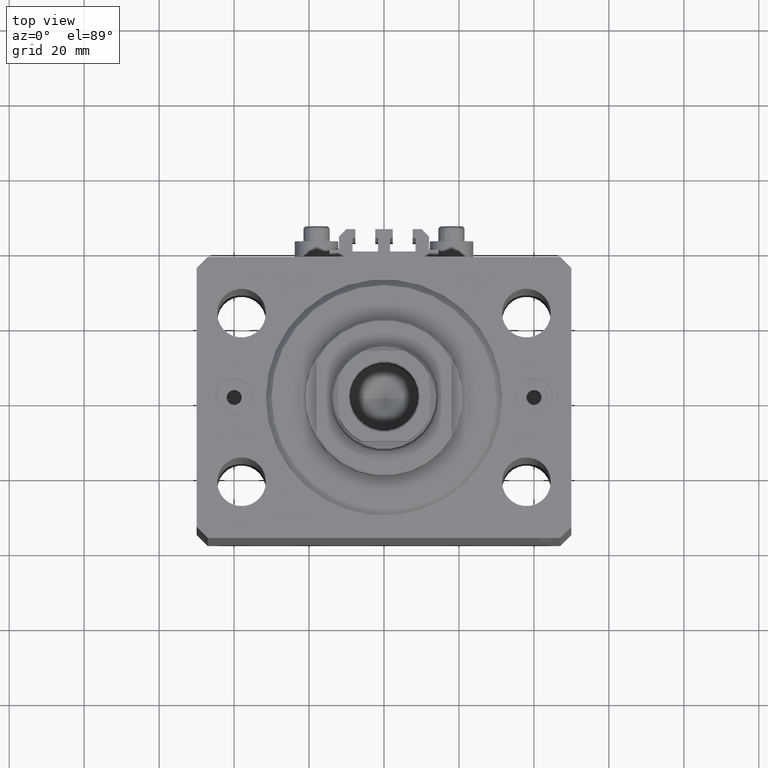
[diagram: clean part render]
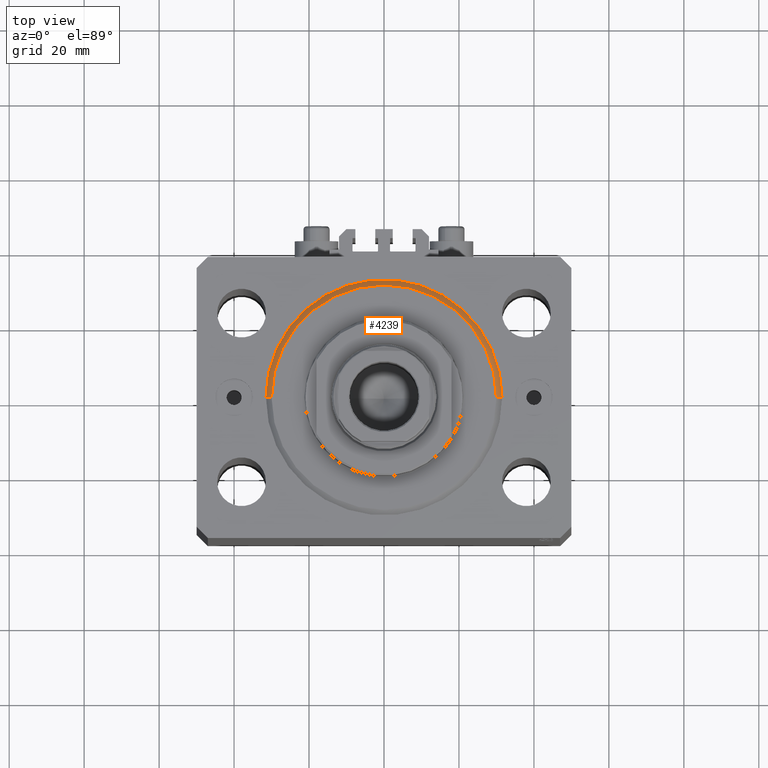
[diagram: same view with one face highlighted and labeled with its STEP entity id]
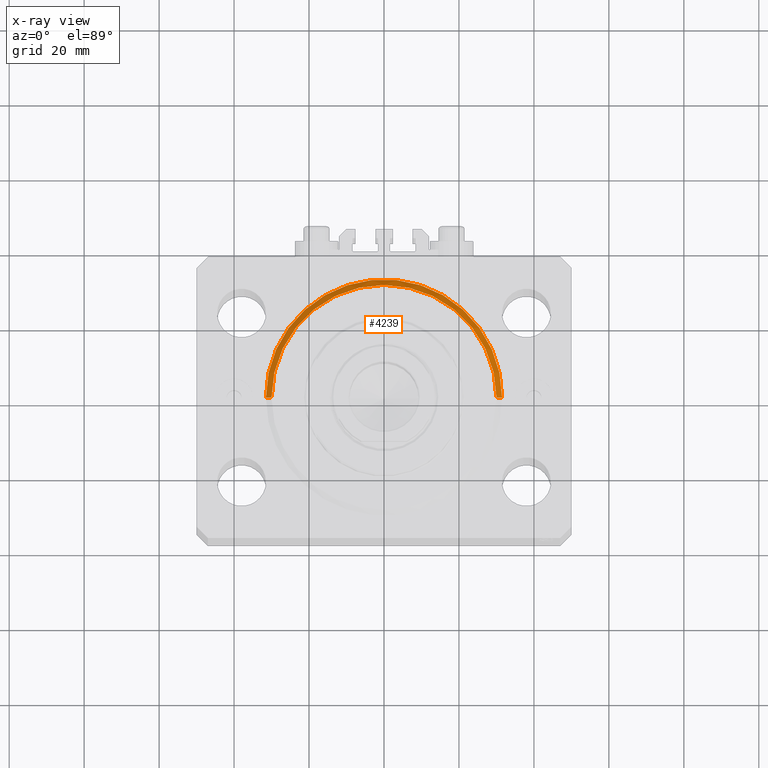
[diagram: x-ray of the same camera — body ghosted, the highlighted face saturated]
A machine part, top view. The second image highlights one B-rep face of the part: STEP entity #4239.
The next image is the same camera in x-ray: the body ghosted, the highlighted face saturated — about 0% of this face is hidden behind the body in this view.
In plain terms, the highlighted conical surface has half-angle 45 deg.
Its self-contained STEP definition (entity closure, byte-faithful):
#354 = CARTESIAN_POINT ( 'NONE',  ( 0.000000000000000000, 0.000000000000000000, 0.000000000000000000 ) ) ;
#581 = FACE_OUTER_BOUND ( 'NONE', #30384, .T. ) ;
#1819 = EDGE_CURVE ( 'NONE', #21754, #16867, #32732, .T. ) ;
#2203 = VECTOR ( 'NONE', #10371, 1000.000000000000000 ) ;
#3846 = CONICAL_SURFACE ( 'NONE', #32790, 31.50000000000000000, 0.7853981633974506105 ) ;
#4085 = LINE ( 'NONE', #18388, #2203 ) ;
#4239 = ADVANCED_FACE ( 'NONE', ( #581 ), #3846, .T. ) ;
#5559 = CARTESIAN_POINT ( 'NONE',  ( 31.50000000000000000, 3.857637417314162689E-15, 1.500000000000001332 ) ) ;
#5905 = VECTOR ( 'NONE', #25928, 1000.000000000000000 ) ;
#7984 = CARTESIAN_POINT ( 'NONE',  ( -31.50000000000000000, 0.000000000000000000, 1.500000000000001332 ) ) ;
#9874 = ORIENTED_EDGE ( 'NONE', *, *, #42525, .T. ) ;
#10371 = DIRECTION ( 'NONE',  ( 0.7071067811865491270, 0.000000000000000000, 0.7071067811865459074 ) ) ;
#11377 = CARTESIAN_POINT ( 'NONE',  ( -31.50000000000000000, 3.857637417314162689E-15, 1.500000000000001332 ) ) ;
#14903 = DIRECTION ( 'NONE',  ( -0.000000000000000000, -0.000000000000000000, -1.000000000000000000 ) ) ;
#14975 = CARTESIAN_POINT ( 'NONE',  ( -29.99999999999999289, 3.765788907378110539E-15, 0.000000000000000000 ) ) ;
#16867 = VERTEX_POINT ( 'NONE', #7984 ) ;
#18388 = CARTESIAN_POINT ( 'NONE',  ( 31.50000000000000000, 0.000000000000000000, 1.500000000000001332 ) ) ;
#18935 = CARTESIAN_POINT ( 'NONE',  ( 0.000000000000000000, 0.000000000000000000, 1.500000000000001332 ) ) ;
#21754 = VERTEX_POINT ( 'NONE', #5559 ) ;
#22659 = ORIENTED_EDGE ( 'NONE', *, *, #41180, .F. ) ;
#23385 = CIRCLE ( 'NONE', #30241, 29.99999999999999289 ) ;
#25416 = DIRECTION ( 'NONE',  ( -0.000000000000000000, -0.000000000000000000, 1.000000000000000000 ) ) ;
#25928 = DIRECTION ( 'NONE',  ( -0.7071067811865491270, 8.659560562354952580E-17, 0.7071067811865459074 ) ) ;
#27997 = EDGE_CURVE ( 'NONE', #39261, #21754, #4085, .T. ) ;
#29493 = LINE ( 'NONE', #11377, #5905 ) ;
#30241 = AXIS2_PLACEMENT_3D ( 'NONE', #354, #14903, #44050 ) ;
#30384 = EDGE_LOOP ( 'NONE', ( #22659, #9874, #37071, #36480 ) ) ;
#31192 = AXIS2_PLACEMENT_3D ( 'NONE', #32177, #46747, #43171 ) ;
#32177 = CARTESIAN_POINT ( 'NONE',  ( 0.000000000000000000, 0.000000000000000000, 1.500000000000001332 ) ) ;
#32732 = CIRCLE ( 'NONE', #31192, 31.50000000000000000 ) ;
#32790 = AXIS2_PLACEMENT_3D ( 'NONE', #18935, #25416, #44045 ) ;
#36480 = ORIENTED_EDGE ( 'NONE', *, *, #27997, .F. ) ;
#37071 = ORIENTED_EDGE ( 'NONE', *, *, #1819, .F. ) ;
#37812 = VERTEX_POINT ( 'NONE', #14975 ) ;
#39261 = VERTEX_POINT ( 'NONE', #42039 ) ;
#41180 = EDGE_CURVE ( 'NONE', #37812, #39261, #23385, .T. ) ;
#42039 = CARTESIAN_POINT ( 'NONE',  ( 29.99999999999999289, 0.000000000000000000, 0.000000000000000000 ) ) ;
#42525 = EDGE_CURVE ( 'NONE', #37812, #16867, #29493, .T. ) ;
#43171 = DIRECTION ( 'NONE',  ( 1.000000000000000000, 0.000000000000000000, 0.000000000000000000 ) ) ;
#44045 = DIRECTION ( 'NONE',  ( 1.000000000000000000, 0.000000000000000000, 0.000000000000000000 ) ) ;
#44050 = DIRECTION ( 'NONE',  ( 1.000000000000000000, 0.000000000000000000, 0.000000000000000000 ) ) ;
#46747 = DIRECTION ( 'NONE',  ( -0.000000000000000000, -0.000000000000000000, 1.000000000000000000 ) ) ;